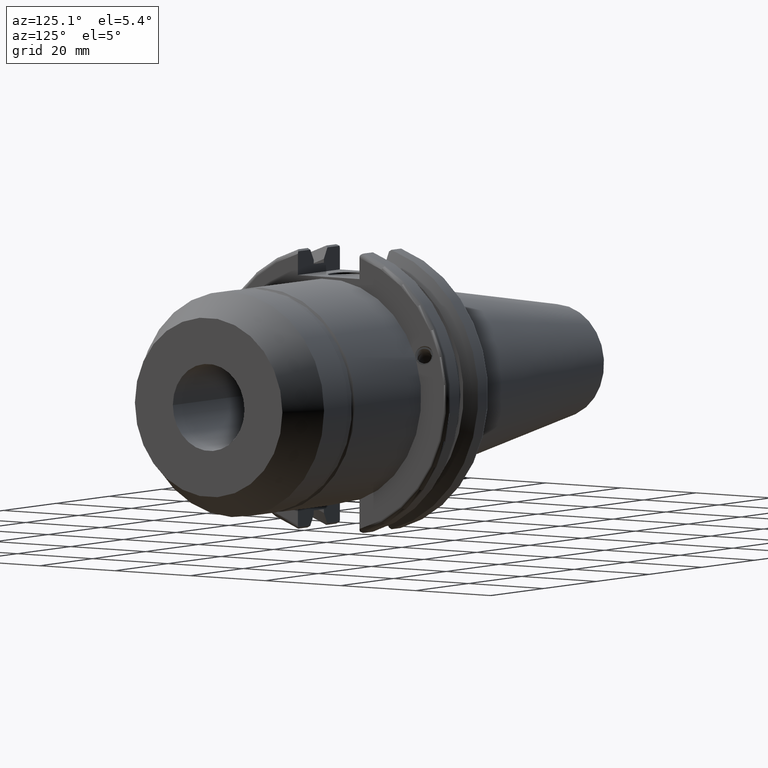
[diagram: clean part render]
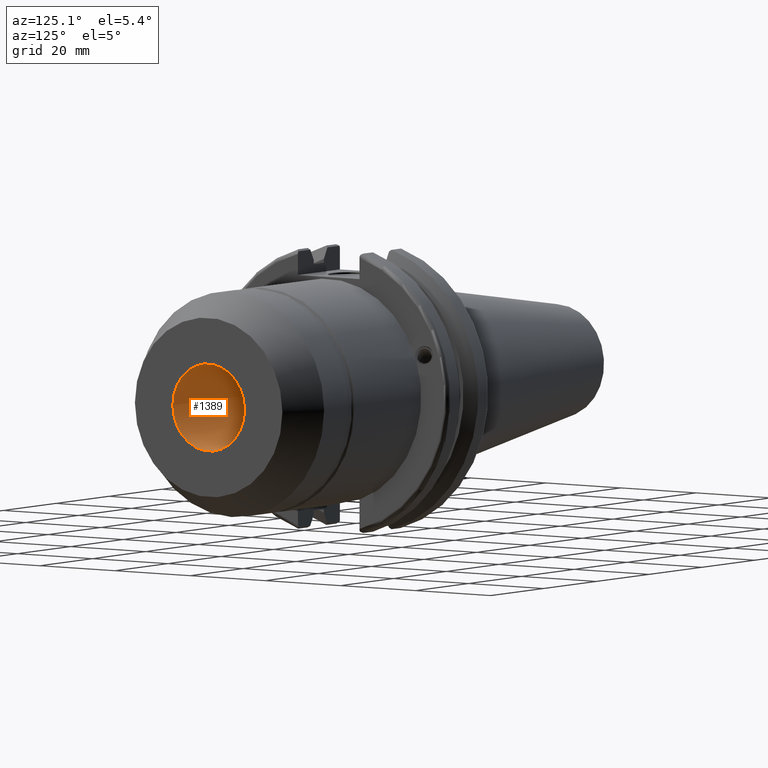
[diagram: same view with one face highlighted and labeled with its STEP entity id]
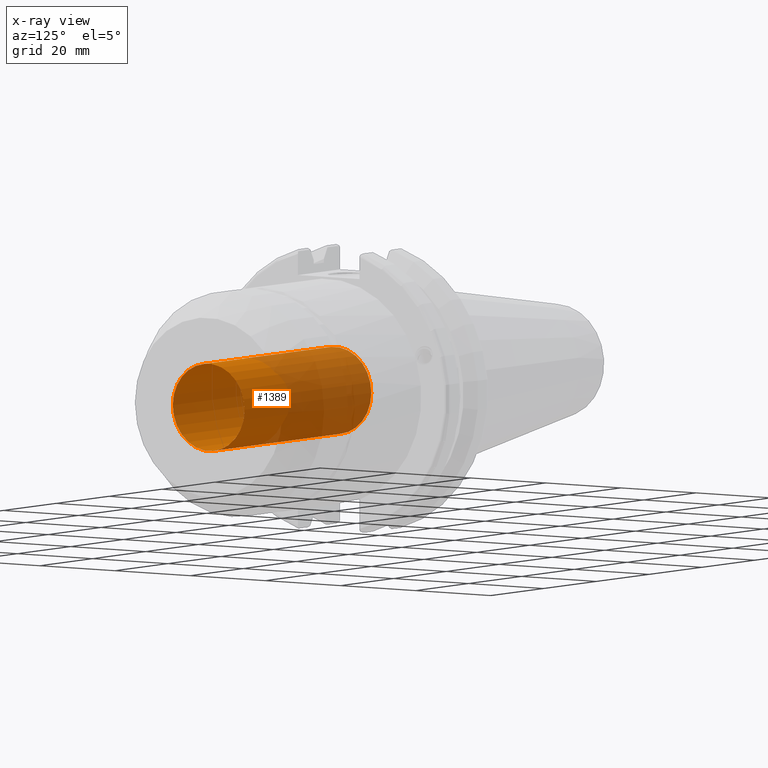
[diagram: x-ray of the same camera — body ghosted, the highlighted face saturated]
A machine part, auxiliary view. The second image highlights one B-rep face of the part: STEP entity #1389.
The next image is the same camera in x-ray: the body ghosted, the highlighted face saturated — about 46% of this face is hidden behind the body in this view.
In plain terms, the highlighted cylindrical surface (bore or boss wall) has radius 9.525 mm, axis along (-1, 0, 0).
Its self-contained STEP definition (entity closure, byte-faithful):
#150=FACE_OUTER_BOUND('',#234,.T.);
#234=EDGE_LOOP('',(#940,#941,#942,#943));
#331=LINE('',#2171,#412);
#412=VECTOR('',#1710,9.525);
#492=CIRCLE('',#1503,9.525);
#493=CIRCLE('',#1504,9.525);
#571=VERTEX_POINT('',#2168);
#572=VERTEX_POINT('',#2170);
#715=EDGE_CURVE('',#571,#571,#492,.T.);
#716=EDGE_CURVE('',#571,#572,#331,.T.);
#717=EDGE_CURVE('',#572,#572,#493,.T.);
#940=ORIENTED_EDGE('',*,*,#715,.F.);
#941=ORIENTED_EDGE('',*,*,#716,.T.);
#942=ORIENTED_EDGE('',*,*,#717,.T.);
#943=ORIENTED_EDGE('',*,*,#716,.F.);
#1356=CYLINDRICAL_SURFACE('',#1502,9.525);
#1389=ADVANCED_FACE('',(#150),#1356,.F.);
#1502=AXIS2_PLACEMENT_3D('',#2167,#1706,#1707);
#1503=AXIS2_PLACEMENT_3D('',#2169,#1708,#1709);
#1504=AXIS2_PLACEMENT_3D('',#2172,#1711,#1712);
#1706=DIRECTION('center_axis',(-1.,0.,0.));
#1707=DIRECTION('ref_axis',(0.,1.,0.));
#1708=DIRECTION('center_axis',(-1.,0.,0.));
#1709=DIRECTION('ref_axis',(0.,1.,0.));
#1710=DIRECTION('',(-1.,0.,0.));
#1711=DIRECTION('center_axis',(-1.,0.,0.));
#1712=DIRECTION('ref_axis',(0.,0.,1.));
#2167=CARTESIAN_POINT('Origin',(40.5,0.,0.));
#2168=CARTESIAN_POINT('',(64.5,-9.525,1.16647607618785E-15));
#2169=CARTESIAN_POINT('Origin',(64.5,0.,0.));
#2170=CARTESIAN_POINT('',(16.5,-9.525,1.16647607618785E-15));
#2171=CARTESIAN_POINT('',(40.5,-9.525,1.16647607618785E-15));
#2172=CARTESIAN_POINT('Origin',(16.5,0.,0.));